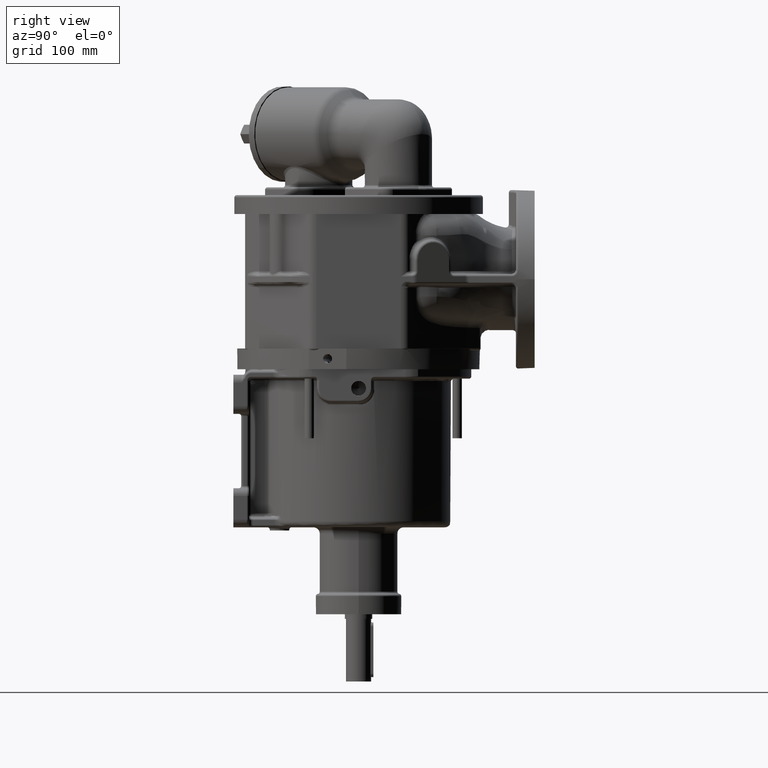
[diagram: clean part render]
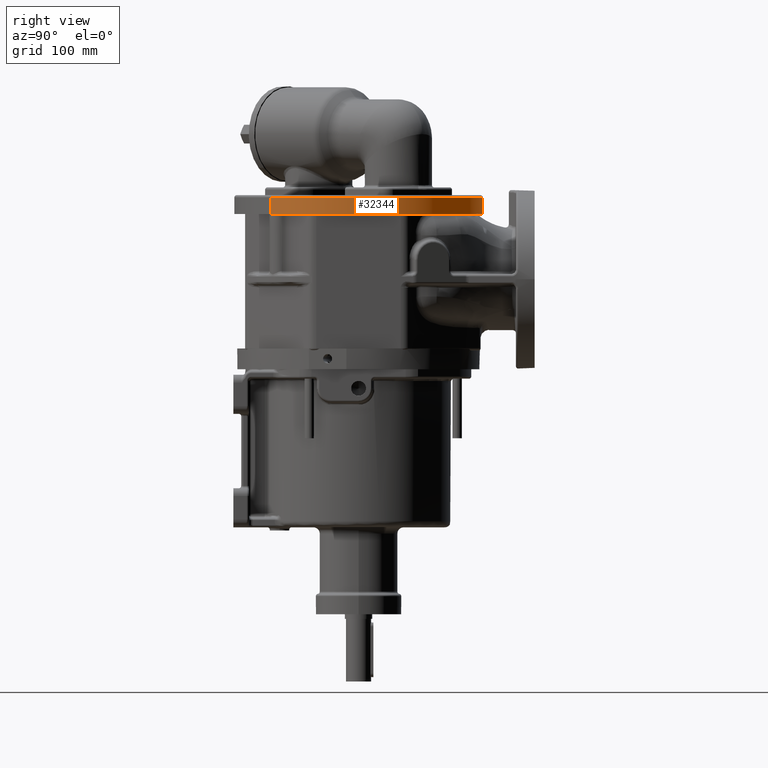
[diagram: same view with one face highlighted and labeled with its STEP entity id]
A machine part, right view. The second image highlights one B-rep face of the part: STEP entity #32344.
In plain terms, the highlighted cylindrical surface (partial cylindrical patch) has radius 159 mm, axis along (0, 0, -1).
Its self-contained STEP definition (entity closure, byte-faithful):
#1603=CARTESIAN_POINT('',(-6.374461531020E-14,8.461680817315E-14,1.685E2));
#1604=DIRECTION('',(0.E0,0.E0,-1.E0));
#1605=DIRECTION('',(-7.071067811865E-1,7.071067811865E-1,0.E0));
#1606=AXIS2_PLACEMENT_3D('',#1603,#1604,#1605);
#1613=DIRECTION('',(0.E0,0.E0,-1.E0));
#1614=VECTOR('',#1613,2.1E1);
#1615=CARTESIAN_POINT('',(1.124299782087E2,-1.124299782087E2,1.895E2));
#1616=LINE('',#1615,#1614);
#1617=DIRECTION('',(0.E0,0.E0,-1.E0));
#1618=VECTOR('',#1617,2.1E1);
#1619=CARTESIAN_POINT('',(-1.124299782087E2,1.124299782087E2,1.895E2));
#1620=LINE('',#1619,#1618);
#1631=CARTESIAN_POINT('',(-5.376596836111E-14,1.061129839722E-13,1.895E2));
#1632=DIRECTION('',(0.E0,0.E0,-1.E0));
#1633=DIRECTION('',(-7.071067811865E-1,7.071067811865E-1,0.E0));
#1634=AXIS2_PLACEMENT_3D('',#1631,#1632,#1633);
#26522=CARTESIAN_POINT('',(-1.124299782087E2,1.124299782087E2,1.685E2));
#26523=CARTESIAN_POINT('',(1.124299782087E2,-1.124299782087E2,1.685E2));
#26524=VERTEX_POINT('',#26522);
#26525=VERTEX_POINT('',#26523);
#26577=CARTESIAN_POINT('',(-1.124299782087E2,1.124299782087E2,1.895E2));
#26578=CARTESIAN_POINT('',(1.124299782087E2,-1.124299782087E2,1.895E2));
#26579=VERTEX_POINT('',#26577);
#26580=VERTEX_POINT('',#26578);
#32333=CARTESIAN_POINT('',(-5.110499584135E-14,1.118452975186E-13,1.951E2));
#32334=DIRECTION('',(0.E0,0.E0,-1.E0));
#32335=DIRECTION('',(-7.071067811865E-1,7.071067811865E-1,0.E0));
#32336=AXIS2_PLACEMENT_3D('',#32333,#32334,#32335);
#32337=CYLINDRICAL_SURFACE('',#32336,1.59E2);
#32338=ORIENTED_EDGE('',*,*,#32324,.F.);
#32339=ORIENTED_EDGE('',*,*,#32299,.T.);
#32340=ORIENTED_EDGE('',*,*,#32204,.T.);
#32341=ORIENTED_EDGE('',*,*,#32296,.F.);
#32342=EDGE_LOOP('',(#32338,#32339,#32340,#32341));
#32343=FACE_OUTER_BOUND('',#32342,.F.);
#32344=ADVANCED_FACE('',(#32343),#32337,.T.);
#1607=CIRCLE('',#1606,1.59E2);
#1635=CIRCLE('',#1634,1.59E2);
#32204=EDGE_CURVE('',#26524,#26525,#1607,.T.);
#32296=EDGE_CURVE('',#26580,#26525,#1616,.T.);
#32299=EDGE_CURVE('',#26579,#26524,#1620,.T.);
#32324=EDGE_CURVE('',#26579,#26580,#1635,.T.);